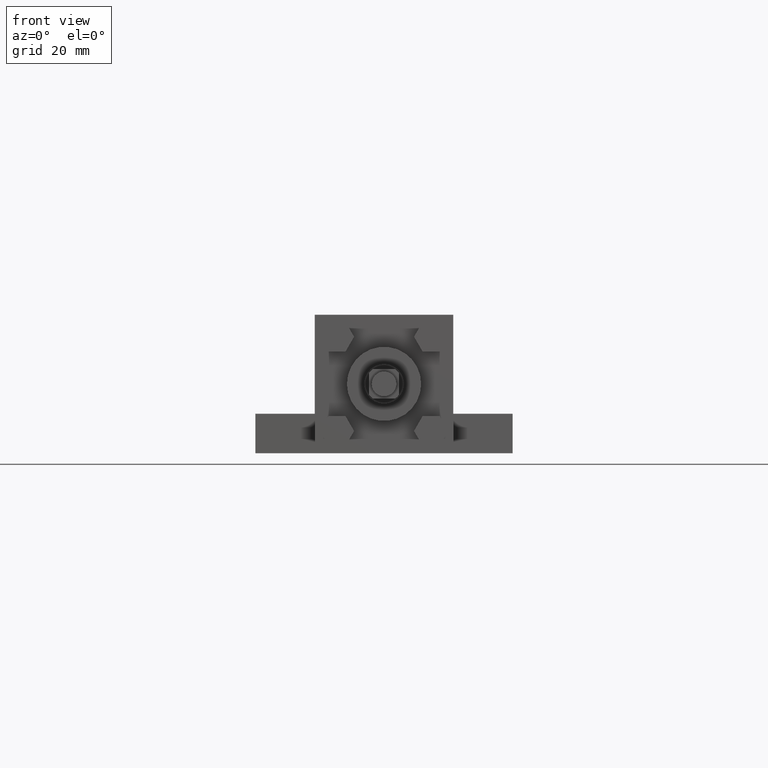
[diagram: clean part render]
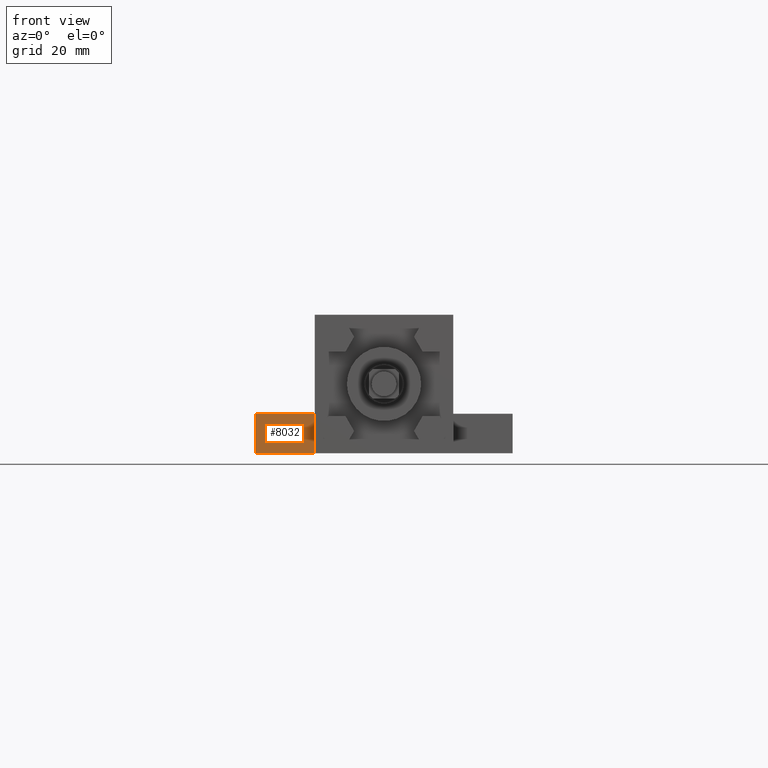
[diagram: same view with one face highlighted and labeled with its STEP entity id]
A machine part, front view. The second image highlights one B-rep face of the part: STEP entity #8032.
In plain terms, the highlighted planar face has unit normal (0, 1, 0).
Its self-contained STEP definition (entity closure, byte-faithful):
#1548=VERTEX_POINT('',#1550);
#1550=CARTESIAN_POINT('',(-2.222500000E+001,2.540000000E+001,-9.525000000E+000));
#1567=VERTEX_POINT('',#1568);
#1568=CARTESIAN_POINT('',(-4.127500000E+001,2.540000000E+001,-9.525000000E+000));
#1569=EDGE_CURVE('',#1567,#1548,#1570,.T.);
#1570=LINE('',#1571,#1572);
#1571=CARTESIAN_POINT('',(-4.127500000E+001,2.540000000E+001,-9.525000000E+000));
#1572=VECTOR('',#1573,1.0E+000);
#1573=DIRECTION('',(1.0E+000,0.0E+000,0.0E+000));
#1579=FACE_OUTER_BOUND('',#1580,.T.);
#1580=EDGE_LOOP('',(#1581,#1582,#1583,#1584));
#1581=ORIENTED_EDGE('',*,*,#1585,.T.);
#1582=ORIENTED_EDGE('',*,*,#1594,.F.);
#1583=ORIENTED_EDGE('',*,*,#1569,.F.);
#1584=ORIENTED_EDGE('',*,*,#1599,.T.);
#1585=EDGE_CURVE('',#1590,#1591,#1586,.T.);
#1586=LINE('',#1587,#1588);
#1587=CARTESIAN_POINT('',(-4.127500000E+001,2.540000000E+001,-2.222500000E+001));
#1588=VECTOR('',#1589,1.0E+000);
#1589=DIRECTION('',(1.0E+000,0.0E+000,0.0E+000));
#1590=VERTEX_POINT('',#1592);
#1591=VERTEX_POINT('',#1593);
#1592=CARTESIAN_POINT('',(-4.127500000E+001,2.540000000E+001,-2.222500000E+001));
#1593=CARTESIAN_POINT('',(-2.222500000E+001,2.540000000E+001,-2.222500000E+001));
#1594=EDGE_CURVE('',#1548,#1591,#1595,.T.);
#1595=LINE('',#1596,#1597);
#1596=CARTESIAN_POINT('',(-2.222500000E+001,2.540000000E+001,-9.525000000E+000));
#1597=VECTOR('',#1598,1.0E+000);
#1598=DIRECTION('',(0.0E+000,0.0E+000,-1.0E+000));
#1599=EDGE_CURVE('',#1567,#1590,#1600,.T.);
#1600=LINE('',#1601,#1602);
#1601=CARTESIAN_POINT('',(-4.127500000E+001,2.540000000E+001,-9.525000000E+000));
#1602=VECTOR('',#1603,1.0E+000);
#1603=DIRECTION('',(0.0E+000,0.0E+000,-1.0E+000));
#1604=PLANE('',#1605);
#1605=AXIS2_PLACEMENT_3D('',#1606,#1607,#1608);
#1606=CARTESIAN_POINT('',(-4.127500000E+001,2.540000000E+001,-9.525000000E+000));
#1607=DIRECTION('',(0.0E+000,1.0E+000,0.0E+000));
#1608=DIRECTION('',(0.0E+000,0.0E+000,1.0E+000));
#8032=ADVANCED_FACE('',(#1579),#1604,.F.);